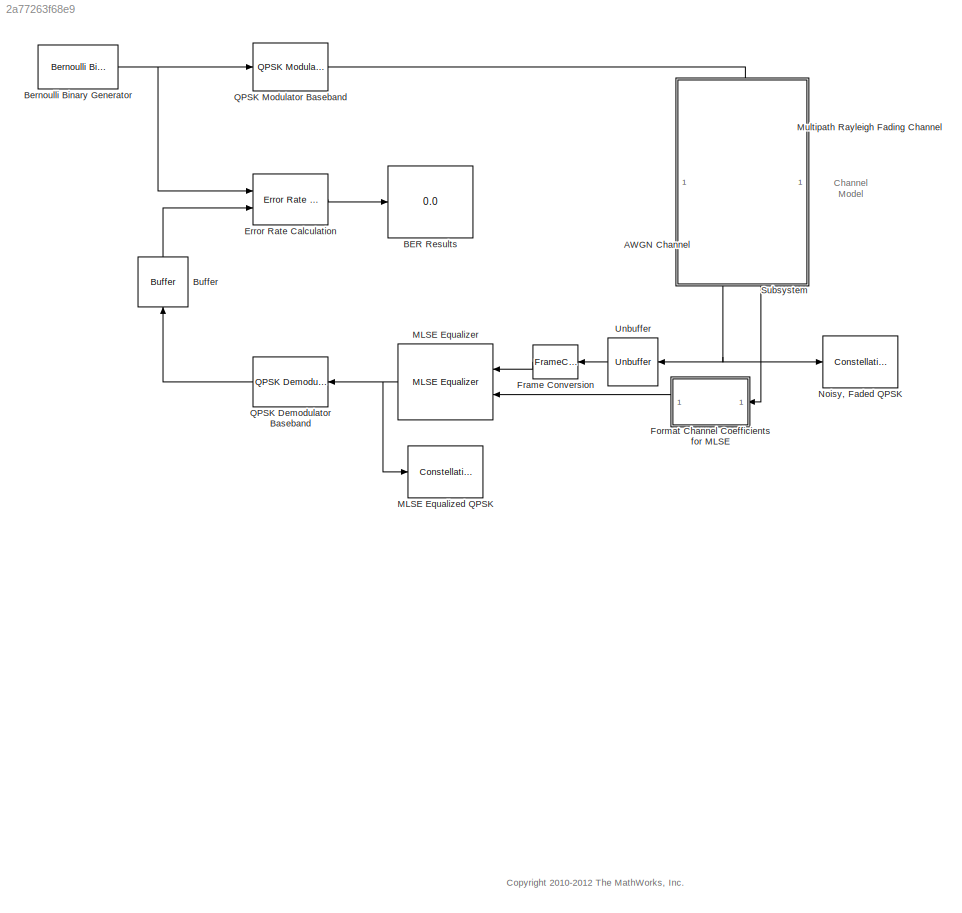
MODEL slx_2a77263f68e9
KIND model
BLOCK [Reference] AWGN Channel  REF=commchan3/AWGN
Channel
  EbNodB = 10
  EsNodB = 10
  InputProcessing = Columns as channels (frame based)
  Ports = [1, 1]
  Ps = 1
  SNRdB = 10
  SourceBlock = commchan3/AWGN\nChannel
  SourceType = AWGN Channel
  Tsym = 1
  UserDataPersistent = on
  bitsPerSym = 1
  noiseMode = Signal to noise ratio  (SNR)
  seed = 67
  variance = 0.3
BLOCK [Display] BER Results
  Decimation = 1
  Ports = [1]
BLOCK [Reference] Bernoulli Binary Generator  REF=commrandsrc2/Bernoulli Binary
Generator
  P = 0.5
  Ports = [0, 1]
  SourceBlock = commrandsrc2/Bernoulli Binary\nGenerator
  SourceType = Bernoulli Binary Generator
  Ts = 5e-6
  frameBased = on
  orient = off
  outDataType = double
  sampPerFrame = 100
  seed = 9973
BLOCK [Buffer] Buffer
  N = 100
  TreatMby1Signals = One channel
BLOCK [Reference] Error Rate Calculation  REF=commsink2/Error Rate
Calculation
  N = 120
  PMode = Port
  Ports = [2, 1]
  RsMode2 = off
  SourceBlock = commsink2/Error Rate\nCalculation
  SourceType = Error Rate Calculation
  WsName = ErrorVec
  cp_mode = Entire frame
  maxBits = 1e6
  numErr = 500
  st_delay = 400
  stop = on
  subframe = []
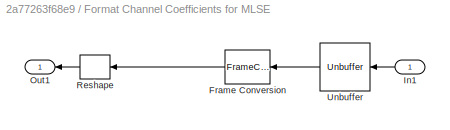
BLOCK [SubSystem] Format Channel Coefficients for MLSE
  Ports = [1, 1]
  RequestExecContextInheritance = off
BLOCK [FrameConversion] Format Channel Coefficients for MLSE/Frame Conversion
  Ports = [1, 1]
BLOCK [Inport] Format Channel Coefficients for MLSE/In1
  IconDisplay = Port number
BLOCK [Outport] Format Channel Coefficients for MLSE/Out1
  IconDisplay = Port number
BLOCK [Reshape] Format Channel Coefficients for MLSE/Reshape
  OutputDimensionality = Column vector (2-D)
  Ports = [1, 1]
BLOCK [Unbuffer] Format Channel Coefficients for MLSE/Unbuffer
  Ports = [1, 1]
  SampleBasedProcessing = Same as frame based
BLOCK [FrameConversion] Frame Conversion
  Ports = [1, 1]
BLOCK [ConstellationDiagram] MLSE Equalized QPSK
  Ports = [1]
  Tag = ScatterPlot
BLOCK [Reference] MLSE Equalizer  REF=commeq2/MLSE Equalizer
  Ports = [2, 1]
  SourceBlock = commeq2/MLSE Equalizer
  SourceType = MLSE Equalizer
  chancoeff = fir1(5, 0.5)
  constpts = [1+j -1+j 1-j -1-j]/sqrt(2)
  enpostamble = off
  enpreamble = off
  numsamp = 1
  opmode = Continuous with reset option
  postamble = [0 2 3 1]
  preamble = [ones(1,8)]
  reset = off
  specchan = Input port
  tbdepth = 10
BLOCK [Reference] Multipath Rayleigh Fading Channel  REF=commchan3/Multipath Rayleigh
Fading Channel
  Ports = [1, 2]
  SourceBlock = commchan3/Multipath Rayleigh\nFading Channel
  SourceType = Multipath Rayleigh Fading Channel
  avgPathGaindB = [0 -10]
  centerFreqGaussian1 = 0.0
  centerFreqGaussian2 = 0.0
  coeffBell = 9
  coeffRounded = [1 -1.72 0.785]
  dopplerSpectrum = doppler.jakes
  enableProbe = 1
  freqMinMaxAJakes = [0 1]
  freqMinMaxRJakes = [0 1]
  gainGaussian1 = 0.5
  gainGaussian2 = 0.5
  maxDopplerShift = 30
  normalizePathGains = on
  openVisAtStart = on
  outDelay = off
  outPathGains = on
  pathDelays = [0 5e-4/50]
  seed = 73
  sigmaGaussian = 1/sqrt(2)
  sigmaGaussian1 = 1/sqrt(2)
  sigmaGaussian2 = 1/sqrt(2)
  spectrumType = Jakes
BLOCK [ConstellationDiagram] Noisy, Faded QPSK
  Ports = [1]
  Tag = ScatterPlot
BLOCK [Reference] QPSK Demodulator Baseband  REF=commdigbbndpm3/QPSK
Demodulator
Baseband
  Dec = Gray
  DecType = Hard decision
  OutType = Bit
  Ph = pi/4
  Ports = [1, 1]
  SourceBlock = commdigbbndpm3/QPSK\nDemodulator\nBaseband
  SourceType = QPSK Demodulator Baseband
  VarSource = Dialog
  Variance = 1
  derotateFactorDTMode = Same word length as input
  derotateFactorWordLen = 16
  outDtype1 = double
  outDtype2 = double
BLOCK [Reference] QPSK Modulator Baseband  REF=commdigbbndpm3/QPSK
Modulator
Baseband
  Enc = Gray
  InType = Bit
  Ph = pi/4
  Ports = [1, 1]
  SourceBlock = commdigbbndpm3/QPSK\nModulator\nBaseband
  SourceType = QPSK Modulator Baseband
  outDtype = double
  outFracLen = 15
  outFracLenMode = Best precision
  outUDDataType = sfix(16)
  outWordLen = 16
BLOCK [SubSystem] Subsystem
  Ports = []
  RequestExecContextInheritance = off
BLOCK [Unbuffer] Unbuffer
  Ports = [1, 1]
  SampleBasedProcessing = Same as frame based
ANNOTATION (root): Channel Model
ANNOTATION (root): <copyright redacted>
NET AWGN Channel:1 -> Noisy, Faded QPSK:1, Unbuffer:1
NET Bernoulli Binary Generator:1 -> Error Rate Calculation:1, QPSK Modulator Baseband:1
LINE Buffer:1 -> Error Rate Calculation:2
LINE Error Rate Calculation:1 -> BER Results:1
LINE Format Channel Coefficients for MLSE/Frame Conversion:1 -> Format Channel Coefficients for MLSE/Reshape:1
LINE Format Channel Coefficients for MLSE/In1:1 -> Format Channel Coefficients for MLSE/Unbuffer:1
LINE Format Channel Coefficients for MLSE/Reshape:1 -> Format Channel Coefficients for MLSE/Out1:1
LINE Format Channel Coefficients for MLSE/Unbuffer:1 -> Format Channel Coefficients for MLSE/Frame Conversion:1
LINE Format Channel Coefficients for MLSE:1 -> MLSE Equalizer:2
LINE Frame Conversion:1 -> MLSE Equalizer:1
NET MLSE Equalizer:1 -> MLSE Equalized QPSK:1, QPSK Demodulator Baseband:1
LINE Multipath Rayleigh Fading Channel:1 -> AWGN Channel:1
LINE Multipath Rayleigh Fading Channel:2 -> Format Channel Coefficients for MLSE:1
LINE QPSK Demodulator Baseband:1 -> Buffer:1
LINE QPSK Modulator Baseband:1 -> Multipath Rayleigh Fading Channel:1
LINE Unbuffer:1 -> Frame Conversion:1
note: NET lines group one-source signal fan-out (src -> all destinations, sorted); 1:1 wires keep LINE
